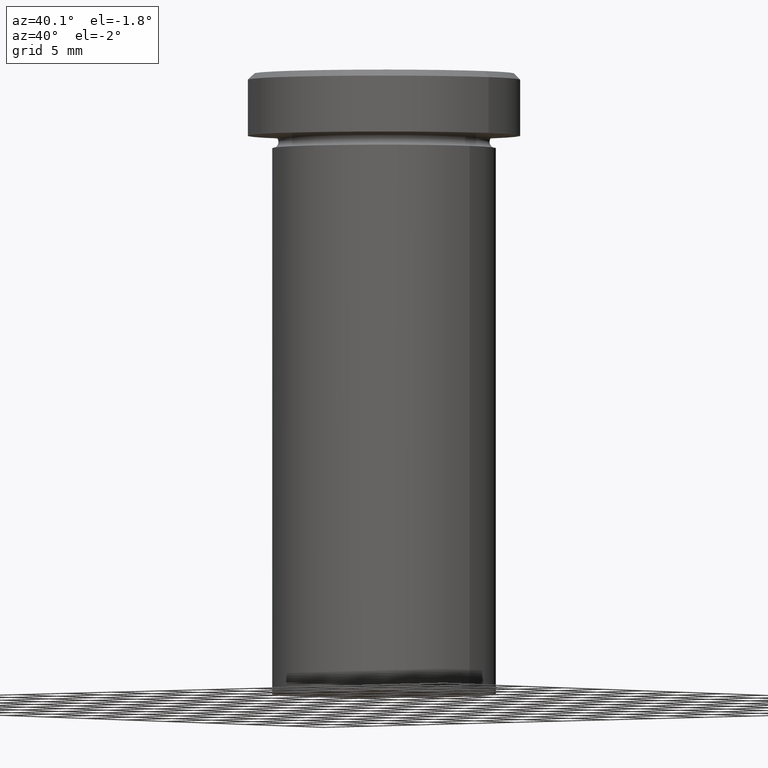
[diagram: clean part render]
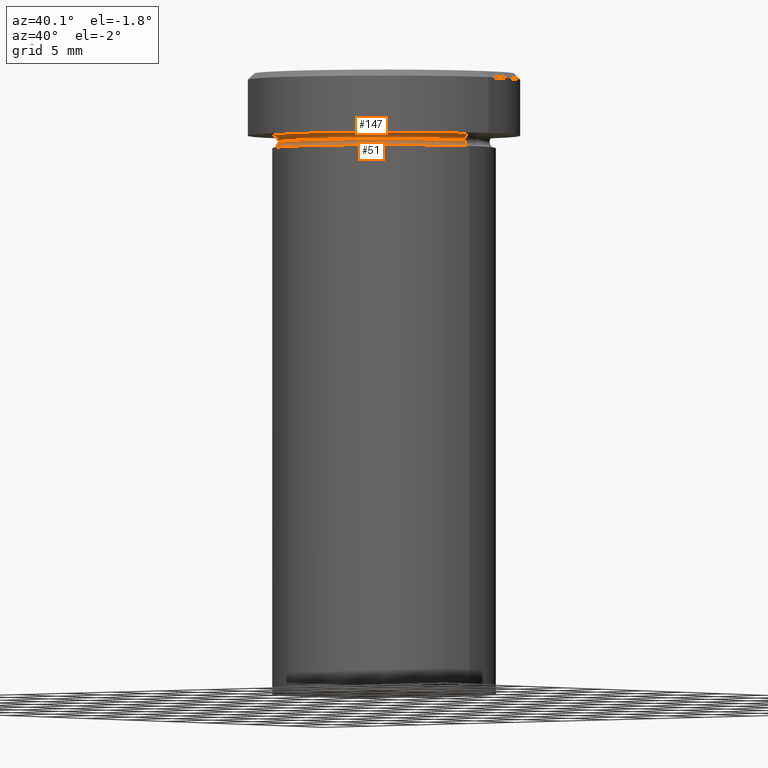
[diagram: same view with one multi-face feature highlighted, each face labeled with its STEP entity id]
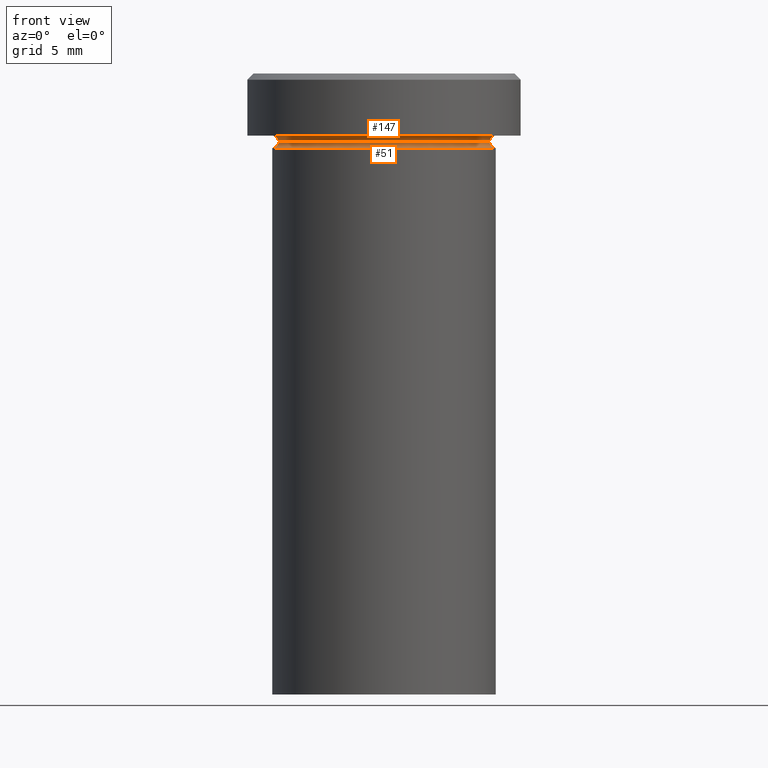
[diagram: same view with one multi-face feature highlighted, each face labeled with its STEP entity id]
A machine part, auxiliary view. The highlighted faces form ONE feature: a constant-radius fillet chain: 2 tangent blend faces with common blend radius 0.5 mm. The faces share edges in the B-rep.
A second angle (front view) of the same feature is appended — it is thin or edge-on in the first view.
Their STEP definitions:
[1] entity #51 (Torus):
#1 = DIRECTION ( 'NONE',  ( 0.000000000000000000, -1.000000000000000000, 0.000000000000000000 ) ) ;
#13 = DIRECTION ( 'NONE',  ( -0.000000000000000000, -0.000000000000000000, 1.000000000000000000 ) ) ;
#27 = EDGE_CURVE ( 'NONE', #149, #409, #136, .T. ) ;
#51 = ADVANCED_FACE ( 'NONE', ( #106 ), #176, .F. ) ;
#75 = CARTESIAN_POINT ( 'NONE',  ( 0.000000000000000000, 0.000000000000000000, -5.500000000000000000 ) ) ;
#78 = DIRECTION ( 'NONE',  ( 1.000000000000000000, 0.000000000000000000, 0.000000000000000000 ) ) ;
#95 = CARTESIAN_POINT ( 'NONE',  ( -9.000000000000000000, 1.102182119232617714E-15, -6.000000000000000000 ) ) ;
#106 = FACE_OUTER_BOUND ( 'NONE', #129, .T. ) ;
#124 = ORIENTED_EDGE ( 'NONE', *, *, #130, .T. ) ;
#129 = EDGE_LOOP ( 'NONE', ( #189, #124, #322, #294 ) ) ;
#130 = EDGE_CURVE ( 'NONE', #149, #214, #402, .T. ) ;
#132 = CARTESIAN_POINT ( 'NONE',  ( 0.000000000000000000, 0.000000000000000000, -5.500000000000000000 ) ) ;
#136 = CIRCLE ( 'NONE', #381, 8.499999999999998224 ) ;
#139 = CARTESIAN_POINT ( 'NONE',  ( 8.499999999999998224, 0.000000000000000000, -5.500000000000000000 ) ) ;
#149 = VERTEX_POINT ( 'NONE', #383 ) ;
#161 = CARTESIAN_POINT ( 'NONE',  ( 9.000000000000000000, 0.000000000000000000, -6.000000000000000000 ) ) ;
#176 = TOROIDAL_SURFACE ( 'NONE', #315, 9.000000000000000000, 0.5000000000000000000 ) ;
#189 = ORIENTED_EDGE ( 'NONE', *, *, #27, .F. ) ;
#214 = VERTEX_POINT ( 'NONE', #95 ) ;
#223 = CARTESIAN_POINT ( 'NONE',  ( -9.000000000000000000, 1.102182119232617714E-15, -5.500000000000000000 ) ) ;
#230 = AXIS2_PLACEMENT_3D ( 'NONE', #276, #235, #378 ) ;
#235 = DIRECTION ( 'NONE',  ( -0.000000000000000000, -0.000000000000000000, 1.000000000000000000 ) ) ;
#248 = CIRCLE ( 'NONE', #379, 0.5000000000000004441 ) ;
#250 = EDGE_CURVE ( 'NONE', #214, #388, #390, .T. ) ;
#261 = DIRECTION ( 'NONE',  ( -1.000000000000000000, 1.224646799147353454E-16, 0.000000000000000000 ) ) ;
#271 = CARTESIAN_POINT ( 'NONE',  ( 9.000000000000000000, 0.000000000000000000, -5.500000000000000000 ) ) ;
#276 = CARTESIAN_POINT ( 'NONE',  ( 0.000000000000000000, 0.000000000000000000, -6.000000000000000000 ) ) ;
#294 = ORIENTED_EDGE ( 'NONE', *, *, #341, .F. ) ;
#307 = DIRECTION ( 'NONE',  ( 0.000000000000000000, 0.000000000000000000, -1.000000000000000000 ) ) ;
#315 = AXIS2_PLACEMENT_3D ( 'NONE', #132, #397, #78 ) ;
#321 = AXIS2_PLACEMENT_3D ( 'NONE', #223, #399, #261 ) ;
#322 = ORIENTED_EDGE ( 'NONE', *, *, #250, .T. ) ;
#326 = DIRECTION ( 'NONE',  ( 1.000000000000000000, 0.000000000000000000, 0.000000000000000000 ) ) ;
#341 = EDGE_CURVE ( 'NONE', #409, #388, #248, .T. ) ;
#378 = DIRECTION ( 'NONE',  ( 1.000000000000000000, 0.000000000000000000, 0.000000000000000000 ) ) ;
#379 = AXIS2_PLACEMENT_3D ( 'NONE', #271, #1, #307 ) ;
#381 = AXIS2_PLACEMENT_3D ( 'NONE', #75, #13, #326 ) ;
#383 = CARTESIAN_POINT ( 'NONE',  ( -8.499999999999998224, 1.071565949253933927E-15, -5.500000000000000000 ) ) ;
#388 = VERTEX_POINT ( 'NONE', #161 ) ;
#390 = CIRCLE ( 'NONE', #230, 9.000000000000000000 ) ;
#397 = DIRECTION ( 'NONE',  ( -0.000000000000000000, -0.000000000000000000, 1.000000000000000000 ) ) ;
#399 = DIRECTION ( 'NONE',  ( 1.224646799147353207E-16, 1.000000000000000000, 0.000000000000000000 ) ) ;
#402 = CIRCLE ( 'NONE', #321, 0.5000000000000004441 ) ;
#409 = VERTEX_POINT ( 'NONE', #139 ) ;
[2] entity #147 (Torus):
#2 = ORIENTED_EDGE ( 'NONE', *, *, #27, .T. ) ;
#13 = DIRECTION ( 'NONE',  ( -0.000000000000000000, -0.000000000000000000, 1.000000000000000000 ) ) ;
#16 = AXIS2_PLACEMENT_3D ( 'NONE', #359, #171, #327 ) ;
#27 = EDGE_CURVE ( 'NONE', #149, #409, #136, .T. ) ;
#31 = FACE_OUTER_BOUND ( 'NONE', #203, .T. ) ;
#37 = VERTEX_POINT ( 'NONE', #285 ) ;
#42 = ORIENTED_EDGE ( 'NONE', *, *, #219, .F. ) ;
#47 = CARTESIAN_POINT ( 'NONE',  ( -9.000000000000000000, 0.000000000000000000, -4.999999999999999112 ) ) ;
#62 = DIRECTION ( 'NONE',  ( -1.000000000000000000, 0.000000000000000000, 0.000000000000000000 ) ) ;
#63 = DIRECTION ( 'NONE',  ( -0.000000000000000000, -0.000000000000000000, 1.000000000000000000 ) ) ;
#65 = EDGE_CURVE ( 'NONE', #409, #37, #371, .T. ) ;
#73 = AXIS2_PLACEMENT_3D ( 'NONE', #342, #63, #345 ) ;
#75 = CARTESIAN_POINT ( 'NONE',  ( 0.000000000000000000, 0.000000000000000000, -5.500000000000000000 ) ) ;
#91 = CIRCLE ( 'NONE', #320, 0.5000000000000004441 ) ;
#115 = CARTESIAN_POINT ( 'NONE',  ( 0.000000000000000000, 0.000000000000000000, -5.500000000000000000 ) ) ;
#118 = DIRECTION ( 'NONE',  ( -0.000000000000000000, -1.000000000000000000, -0.000000000000000000 ) ) ;
#123 = AXIS2_PLACEMENT_3D ( 'NONE', #115, #234, #62 ) ;
#136 = CIRCLE ( 'NONE', #381, 8.499999999999998224 ) ;
#139 = CARTESIAN_POINT ( 'NONE',  ( 8.499999999999998224, 0.000000000000000000, -5.500000000000000000 ) ) ;
#147 = ADVANCED_FACE ( 'NONE', ( #31 ), #190, .F. ) ;
#149 = VERTEX_POINT ( 'NONE', #383 ) ;
#160 = ORIENTED_EDGE ( 'NONE', *, *, #178, .F. ) ;
#171 = DIRECTION ( 'NONE',  ( -1.224646799147353207E-16, 1.000000000000000000, 0.000000000000000000 ) ) ;
#178 = EDGE_CURVE ( 'NONE', #149, #386, #91, .T. ) ;
#181 = CARTESIAN_POINT ( 'NONE',  ( -9.000000000000000000, 0.000000000000000000, -5.500000000000000000 ) ) ;
#190 = TOROIDAL_SURFACE ( 'NONE', #123, 9.000000000000000000, 0.5000000000000000000 ) ;
#203 = EDGE_LOOP ( 'NONE', ( #2, #319, #42, #160 ) ) ;
#219 = EDGE_CURVE ( 'NONE', #386, #37, #330, .T. ) ;
#234 = DIRECTION ( 'NONE',  ( 0.000000000000000000, 0.000000000000000000, -1.000000000000000000 ) ) ;
#238 = DIRECTION ( 'NONE',  ( 0.000000000000000000, 0.000000000000000000, -1.000000000000000000 ) ) ;
#285 = CARTESIAN_POINT ( 'NONE',  ( 9.000000000000000000, 1.102182119232617714E-15, -4.999999999999999112 ) ) ;
#319 = ORIENTED_EDGE ( 'NONE', *, *, #65, .T. ) ;
#320 = AXIS2_PLACEMENT_3D ( 'NONE', #181, #118, #238 ) ;
#326 = DIRECTION ( 'NONE',  ( 1.000000000000000000, 0.000000000000000000, 0.000000000000000000 ) ) ;
#327 = DIRECTION ( 'NONE',  ( -1.000000000000000000, -1.224646799147353454E-16, 0.000000000000000000 ) ) ;
#330 = CIRCLE ( 'NONE', #73, 9.000000000000000000 ) ;
#342 = CARTESIAN_POINT ( 'NONE',  ( 0.000000000000000000, 0.000000000000000000, -5.000000000000000000 ) ) ;
#345 = DIRECTION ( 'NONE',  ( -1.000000000000000000, 0.000000000000000000, 0.000000000000000000 ) ) ;
#359 = CARTESIAN_POINT ( 'NONE',  ( 9.000000000000000000, 1.102182119232617714E-15, -5.500000000000000000 ) ) ;
#371 = CIRCLE ( 'NONE', #16, 0.5000000000000004441 ) ;
#381 = AXIS2_PLACEMENT_3D ( 'NONE', #75, #13, #326 ) ;
#383 = CARTESIAN_POINT ( 'NONE',  ( -8.499999999999998224, 1.071565949253933927E-15, -5.500000000000000000 ) ) ;
#386 = VERTEX_POINT ( 'NONE', #47 ) ;
#409 = VERTEX_POINT ( 'NONE', #139 ) ;